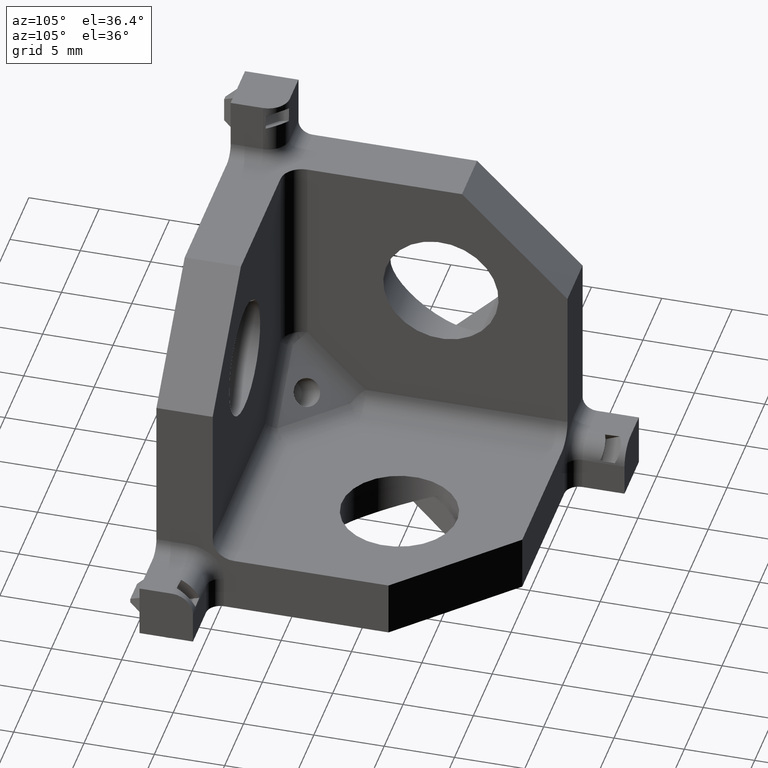
[diagram: clean part render]
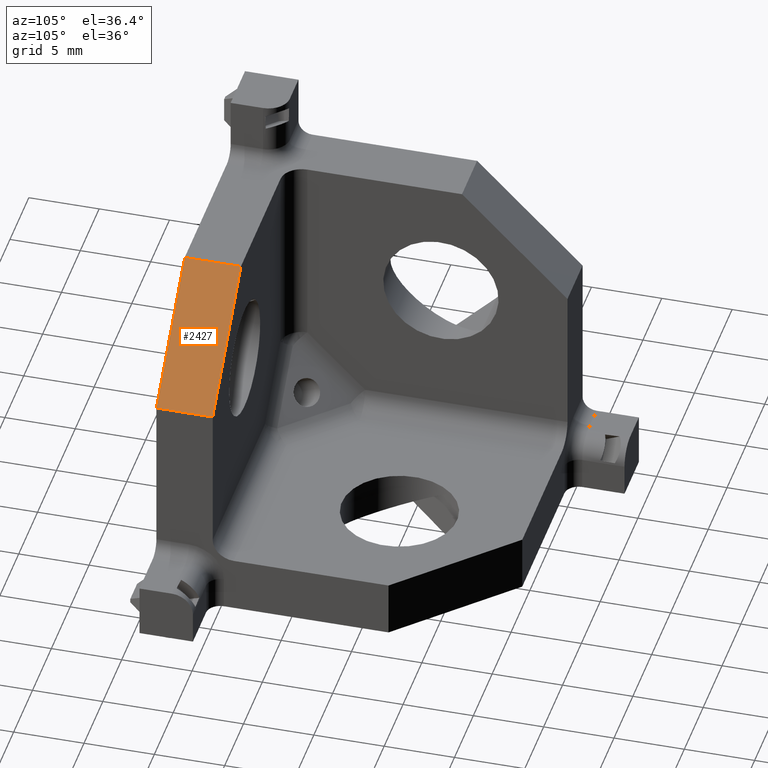
[diagram: same view with one face highlighted and labeled with its STEP entity id]
A machine part, auxiliary view. The second image highlights one B-rep face of the part: STEP entity #2427.
In plain terms, the highlighted planar face has unit normal (-0.7071, 0, -0.7071).
Its self-contained STEP definition (entity closure, byte-faithful):
#70=PLANE('',#2635);
#229=FACE_OUTER_BOUND('',#388,.T.);
#388=EDGE_LOOP('',(#1917,#1918,#1919,#1920));
#581=LINE('',#3552,#853);
#664=LINE('',#3746,#936);
#672=LINE('',#3763,#944);
#687=LINE('',#3804,#959);
#853=VECTOR('',#2833,1000.);
#936=VECTOR('',#2956,1000.);
#944=VECTOR('',#2970,1000.);
#959=VECTOR('',#3009,1000.);
#1132=VERTEX_POINT('',#3548);
#1134=VERTEX_POINT('',#3551);
#1225=VERTEX_POINT('',#3744);
#1231=VERTEX_POINT('',#3761);
#1367=EDGE_CURVE('',#1132,#1134,#581,.T.);
#1465=EDGE_CURVE('',#1225,#1132,#664,.T.);
#1474=EDGE_CURVE('',#1231,#1225,#672,.T.);
#1498=EDGE_CURVE('',#1134,#1231,#687,.T.);
#1917=ORIENTED_EDGE('',*,*,#1474,.F.);
#1918=ORIENTED_EDGE('',*,*,#1498,.F.);
#1919=ORIENTED_EDGE('',*,*,#1367,.F.);
#1920=ORIENTED_EDGE('',*,*,#1465,.F.);
#2427=ADVANCED_FACE('',(#229),#70,.F.);
#2635=AXIS2_PLACEMENT_3D('',#3850,#3056,#3057);
#2833=DIRECTION('',(-0.707106781186549,0.,0.707106781186546));
#2956=DIRECTION('',(0.,-1.,0.));
#2970=DIRECTION('',(0.707106781186549,0.,-0.707106781186546));
#3009=DIRECTION('',(0.,1.,0.));
#3056=DIRECTION('center_axis',(-0.707106781186546,0.,-0.707106781186549));
#3057=DIRECTION('ref_axis',(0.,-1.,0.));
#3548=CARTESIAN_POINT('',(9.5,-14.,2.));
#3551=CARTESIAN_POINT('',(1.99999999999997,-14.,9.5));
#3552=CARTESIAN_POINT('',(9.5,-14.,2.));
#3744=CARTESIAN_POINT('',(9.5,-10.,2.));
#3746=CARTESIAN_POINT('',(9.5,0.,2.));
#3761=CARTESIAN_POINT('',(1.99999999999997,-10.,9.5));
#3763=CARTESIAN_POINT('',(5.74999999999998,-10.,5.75000000000001));
#3804=CARTESIAN_POINT('',(1.99999999999997,0.,9.5));
#3850=CARTESIAN_POINT('Origin',(9.5,0.,2.));